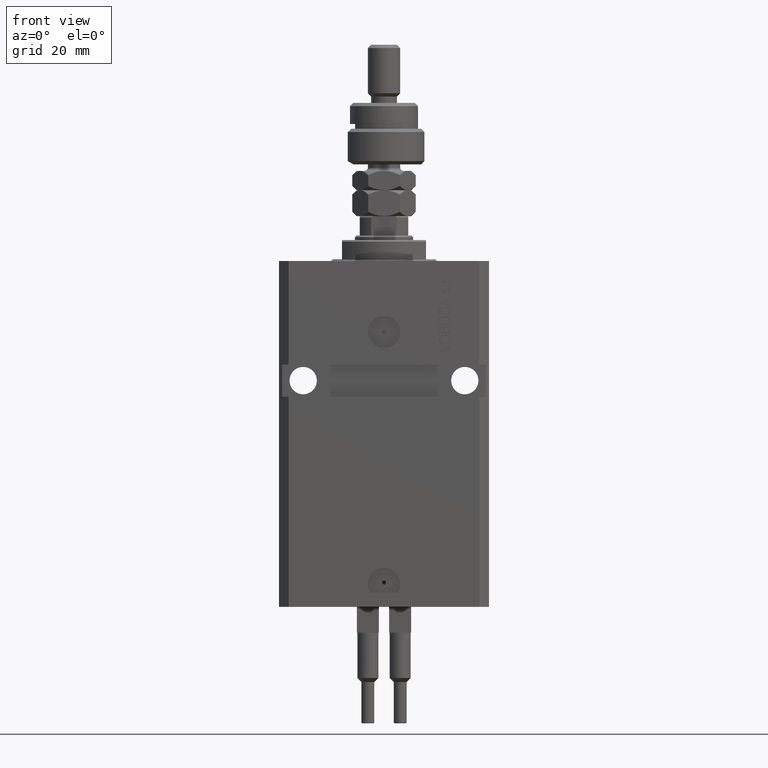
[diagram: clean part render]
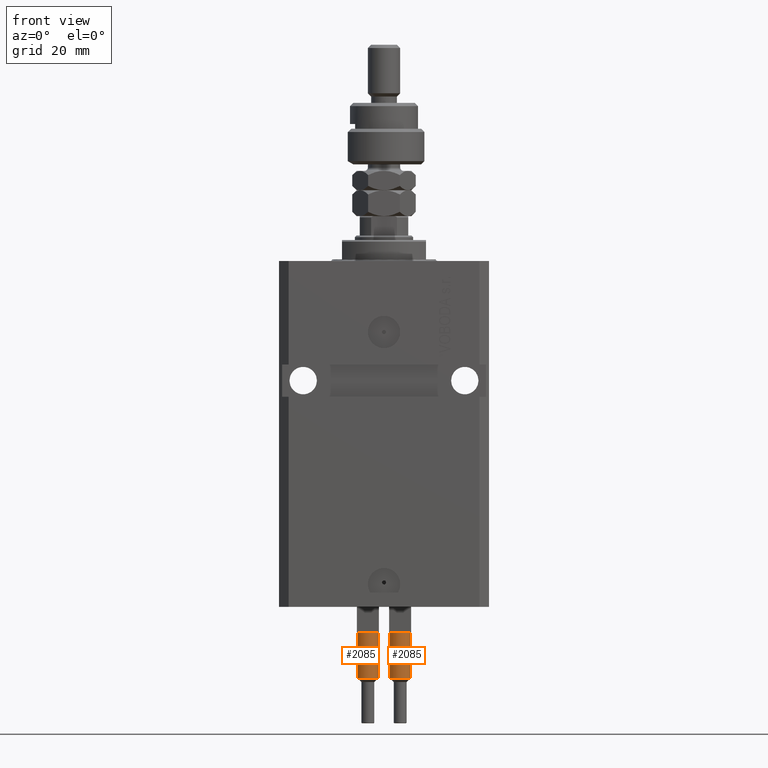
[diagram: same view with one multi-face feature highlighted, each face labeled with its STEP entity id]
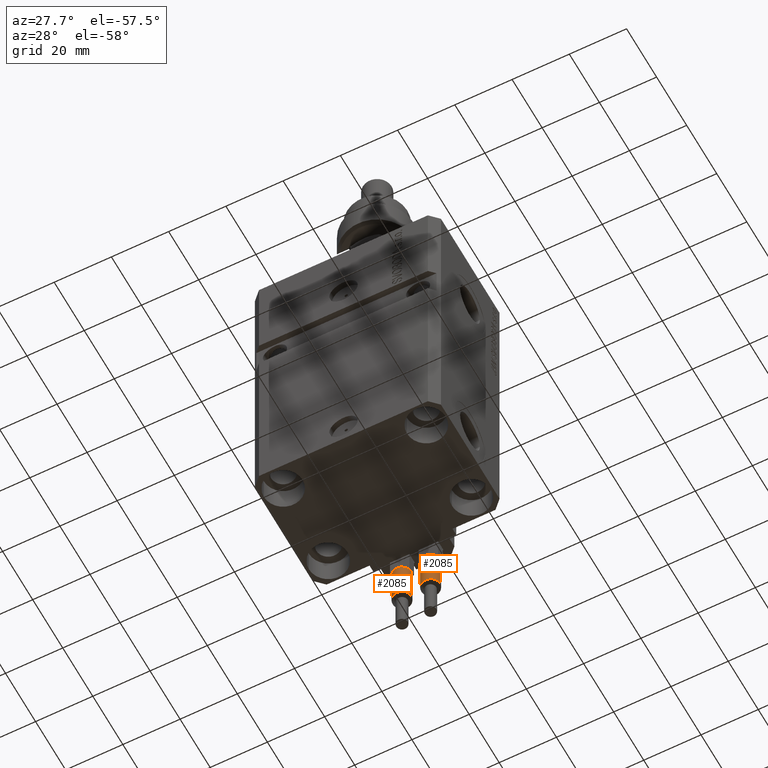
[diagram: same view with one multi-face feature highlighted, each face labeled with its STEP entity id]
A machine part, front view. The highlighted faces form ONE feature: a constant-radius fillet chain: 2 tangent blend faces with common blend radius 3.25 mm. The faces share edges in the B-rep.
A second angle (auxiliary view) of the same feature is appended — it is thin or edge-on in the first view.
Their STEP definitions:
[1] entity #2085 (Cylinder):
#932 = CIRCLE ( 'NONE', #35787, 3.250000000000000444 ) ;
#2085 = ADVANCED_FACE ( 'NONE', ( #15287 ), #31127, .T. ) ;
#3613 = DIRECTION ( 'NONE',  ( -0.000000000000000000, -0.000000000000000000, -1.000000000000000000 ) ) ;
#4104 = CARTESIAN_POINT ( 'NONE',  ( 0.000000000000000000, 0.000000000000000000, 40.00000000000000000 ) ) ;
#4173 = DIRECTION ( 'NONE',  ( -0.000000000000000000, -0.000000000000000000, -1.000000000000000000 ) ) ;
#4174 = VERTEX_POINT ( 'NONE', #9027 ) ;
#6012 = DIRECTION ( 'NONE',  ( 0.000000000000000000, 0.000000000000000000, -1.000000000000000000 ) ) ;
#6780 = EDGE_CURVE ( 'NONE', #12919, #44844, #41894, .T. ) ;
#6816 = ORIENTED_EDGE ( 'NONE', *, *, #27564, .T. ) ;
#6829 = AXIS2_PLACEMENT_3D ( 'NONE', #4104, #47705, #27991 ) ;
#9027 = CARTESIAN_POINT ( 'NONE',  ( -2.883140648667699146, -1.500000000000000000, 40.00000000000000000 ) ) ;
#10085 = LINE ( 'NONE', #18150, #25941 ) ;
#11092 = CARTESIAN_POINT ( 'NONE',  ( -3.250000000000000444, 0.000000000000000000, 53.99999999999998579 ) ) ;
#11375 = CARTESIAN_POINT ( 'NONE',  ( 0.000000000000000000, 0.000000000000000000, 56.00000000000000000 ) ) ;
#12723 = VERTEX_POINT ( 'NONE', #25381 ) ;
#12919 = VERTEX_POINT ( 'NONE', #24558 ) ;
#14056 = CARTESIAN_POINT ( 'NONE',  ( 0.000000000000000000, 0.000000000000000000, 53.99999999999998579 ) ) ;
#15282 = DIRECTION ( 'NONE',  ( 0.000000000000000000, 0.000000000000000000, 1.000000000000000000 ) ) ;
#15287 = FACE_OUTER_BOUND ( 'NONE', #44099, .T. ) ;
#15748 = CARTESIAN_POINT ( 'NONE',  ( 0.000000000000000000, 0.000000000000000000, 40.00000000000000000 ) ) ;
#15994 = CARTESIAN_POINT ( 'NONE',  ( 2.883140648667699146, -1.500000000000000000, 40.00000000000000000 ) ) ;
#16230 = AXIS2_PLACEMENT_3D ( 'NONE', #11375, #3613, #24850 ) ;
#18150 = CARTESIAN_POINT ( 'NONE',  ( -3.250000000000000444, 0.000000000000000000, 56.00000000000000000 ) ) ;
#18461 = CIRCLE ( 'NONE', #40753, 3.250000000000000444 ) ;
#24558 = CARTESIAN_POINT ( 'NONE',  ( 3.250000000000000444, 3.980102097228898231E-16, 53.99999999999998579 ) ) ;
#24850 = DIRECTION ( 'NONE',  ( -1.000000000000000000, 0.000000000000000000, 0.000000000000000000 ) ) ;
#25381 = CARTESIAN_POINT ( 'NONE',  ( -3.250000000000000444, 0.000000000000000000, 40.00000000000000000 ) ) ;
#25412 = CARTESIAN_POINT ( 'NONE',  ( 3.250000000000000444, 3.980102097228898231E-16, 40.00000000000000000 ) ) ;
#25941 = VECTOR ( 'NONE', #30353, 1000.000000000000000 ) ;
#26486 = VERTEX_POINT ( 'NONE', #25412 ) ;
#26683 = EDGE_CURVE ( 'NONE', #12723, #4174, #34191, .T. ) ;
#27416 = EDGE_CURVE ( 'NONE', #44844, #12723, #10085, .T. ) ;
#27564 = EDGE_CURVE ( 'NONE', #4174, #30895, #18461, .T. ) ;
#27954 = DIRECTION ( 'NONE',  ( 0.000000000000000000, 0.000000000000000000, 1.000000000000000000 ) ) ;
#27991 = DIRECTION ( 'NONE',  ( 1.000000000000000000, 0.000000000000000000, 0.000000000000000000 ) ) ;
#28207 = DIRECTION ( 'NONE',  ( 1.000000000000000000, 0.000000000000000000, 0.000000000000000000 ) ) ;
#30353 = DIRECTION ( 'NONE',  ( -0.000000000000000000, -0.000000000000000000, -1.000000000000000000 ) ) ;
#30496 = ORIENTED_EDGE ( 'NONE', *, *, #26683, .T. ) ;
#30895 = VERTEX_POINT ( 'NONE', #15994 ) ;
#31127 = CYLINDRICAL_SURFACE ( 'NONE', #16230, 3.250000000000000444 ) ;
#31727 = EDGE_CURVE ( 'NONE', #30895, #26486, #932, .T. ) ;
#32623 = ORIENTED_EDGE ( 'NONE', *, *, #6780, .T. ) ;
#33284 = DIRECTION ( 'NONE',  ( 1.000000000000000000, 0.000000000000000000, 0.000000000000000000 ) ) ;
#34191 = CIRCLE ( 'NONE', #6829, 3.250000000000000444 ) ;
#34834 = CARTESIAN_POINT ( 'NONE',  ( 3.250000000000000444, 3.980102097228898231E-16, 56.00000000000000000 ) ) ;
#35787 = AXIS2_PLACEMENT_3D ( 'NONE', #15748, #27954, #28207 ) ;
#36543 = ORIENTED_EDGE ( 'NONE', *, *, #27416, .T. ) ;
#37833 = EDGE_CURVE ( 'NONE', #12919, #26486, #50650, .T. ) ;
#38907 = DIRECTION ( 'NONE',  ( 1.000000000000000000, 0.000000000000000000, 0.000000000000000000 ) ) ;
#39673 = CARTESIAN_POINT ( 'NONE',  ( 0.000000000000000000, 0.000000000000000000, 40.00000000000000000 ) ) ;
#40226 = AXIS2_PLACEMENT_3D ( 'NONE', #14056, #6012, #33284 ) ;
#40616 = ORIENTED_EDGE ( 'NONE', *, *, #37833, .F. ) ;
#40753 = AXIS2_PLACEMENT_3D ( 'NONE', #39673, #15282, #38907 ) ;
#41894 = CIRCLE ( 'NONE', #40226, 3.250000000000000444 ) ;
#44091 = ORIENTED_EDGE ( 'NONE', *, *, #31727, .T. ) ;
#44099 = EDGE_LOOP ( 'NONE', ( #40616, #32623, #36543, #30496, #6816, #44091 ) ) ;
#44120 = VECTOR ( 'NONE', #4173, 1000.000000000000000 ) ;
#44844 = VERTEX_POINT ( 'NONE', #11092 ) ;
#47705 = DIRECTION ( 'NONE',  ( 0.000000000000000000, 0.000000000000000000, 1.000000000000000000 ) ) ;
#50650 = LINE ( 'NONE', #34834, #44120 ) ;
[2] entity #2085 (Cylinder):
#932 = CIRCLE ( 'NONE', #35787, 3.250000000000000444 ) ;
#2085 = ADVANCED_FACE ( 'NONE', ( #15287 ), #31127, .T. ) ;
#3613 = DIRECTION ( 'NONE',  ( -0.000000000000000000, -0.000000000000000000, -1.000000000000000000 ) ) ;
#4104 = CARTESIAN_POINT ( 'NONE',  ( 0.000000000000000000, 0.000000000000000000, 40.00000000000000000 ) ) ;
#4173 = DIRECTION ( 'NONE',  ( -0.000000000000000000, -0.000000000000000000, -1.000000000000000000 ) ) ;
#4174 = VERTEX_POINT ( 'NONE', #9027 ) ;
#6012 = DIRECTION ( 'NONE',  ( 0.000000000000000000, 0.000000000000000000, -1.000000000000000000 ) ) ;
#6780 = EDGE_CURVE ( 'NONE', #12919, #44844, #41894, .T. ) ;
#6816 = ORIENTED_EDGE ( 'NONE', *, *, #27564, .T. ) ;
#6829 = AXIS2_PLACEMENT_3D ( 'NONE', #4104, #47705, #27991 ) ;
#9027 = CARTESIAN_POINT ( 'NONE',  ( -2.883140648667699146, -1.500000000000000000, 40.00000000000000000 ) ) ;
#10085 = LINE ( 'NONE', #18150, #25941 ) ;
#11092 = CARTESIAN_POINT ( 'NONE',  ( -3.250000000000000444, 0.000000000000000000, 53.99999999999998579 ) ) ;
#11375 = CARTESIAN_POINT ( 'NONE',  ( 0.000000000000000000, 0.000000000000000000, 56.00000000000000000 ) ) ;
#12723 = VERTEX_POINT ( 'NONE', #25381 ) ;
#12919 = VERTEX_POINT ( 'NONE', #24558 ) ;
#14056 = CARTESIAN_POINT ( 'NONE',  ( 0.000000000000000000, 0.000000000000000000, 53.99999999999998579 ) ) ;
#15282 = DIRECTION ( 'NONE',  ( 0.000000000000000000, 0.000000000000000000, 1.000000000000000000 ) ) ;
#15287 = FACE_OUTER_BOUND ( 'NONE', #44099, .T. ) ;
#15748 = CARTESIAN_POINT ( 'NONE',  ( 0.000000000000000000, 0.000000000000000000, 40.00000000000000000 ) ) ;
#15994 = CARTESIAN_POINT ( 'NONE',  ( 2.883140648667699146, -1.500000000000000000, 40.00000000000000000 ) ) ;
#16230 = AXIS2_PLACEMENT_3D ( 'NONE', #11375, #3613, #24850 ) ;
#18150 = CARTESIAN_POINT ( 'NONE',  ( -3.250000000000000444, 0.000000000000000000, 56.00000000000000000 ) ) ;
#18461 = CIRCLE ( 'NONE', #40753, 3.250000000000000444 ) ;
#24558 = CARTESIAN_POINT ( 'NONE',  ( 3.250000000000000444, 3.980102097228898231E-16, 53.99999999999998579 ) ) ;
#24850 = DIRECTION ( 'NONE',  ( -1.000000000000000000, 0.000000000000000000, 0.000000000000000000 ) ) ;
#25381 = CARTESIAN_POINT ( 'NONE',  ( -3.250000000000000444, 0.000000000000000000, 40.00000000000000000 ) ) ;
#25412 = CARTESIAN_POINT ( 'NONE',  ( 3.250000000000000444, 3.980102097228898231E-16, 40.00000000000000000 ) ) ;
#25941 = VECTOR ( 'NONE', #30353, 1000.000000000000000 ) ;
#26486 = VERTEX_POINT ( 'NONE', #25412 ) ;
#26683 = EDGE_CURVE ( 'NONE', #12723, #4174, #34191, .T. ) ;
#27416 = EDGE_CURVE ( 'NONE', #44844, #12723, #10085, .T. ) ;
#27564 = EDGE_CURVE ( 'NONE', #4174, #30895, #18461, .T. ) ;
#27954 = DIRECTION ( 'NONE',  ( 0.000000000000000000, 0.000000000000000000, 1.000000000000000000 ) ) ;
#27991 = DIRECTION ( 'NONE',  ( 1.000000000000000000, 0.000000000000000000, 0.000000000000000000 ) ) ;
#28207 = DIRECTION ( 'NONE',  ( 1.000000000000000000, 0.000000000000000000, 0.000000000000000000 ) ) ;
#30353 = DIRECTION ( 'NONE',  ( -0.000000000000000000, -0.000000000000000000, -1.000000000000000000 ) ) ;
#30496 = ORIENTED_EDGE ( 'NONE', *, *, #26683, .T. ) ;
#30895 = VERTEX_POINT ( 'NONE', #15994 ) ;
#31127 = CYLINDRICAL_SURFACE ( 'NONE', #16230, 3.250000000000000444 ) ;
#31727 = EDGE_CURVE ( 'NONE', #30895, #26486, #932, .T. ) ;
#32623 = ORIENTED_EDGE ( 'NONE', *, *, #6780, .T. ) ;
#33284 = DIRECTION ( 'NONE',  ( 1.000000000000000000, 0.000000000000000000, 0.000000000000000000 ) ) ;
#34191 = CIRCLE ( 'NONE', #6829, 3.250000000000000444 ) ;
#34834 = CARTESIAN_POINT ( 'NONE',  ( 3.250000000000000444, 3.980102097228898231E-16, 56.00000000000000000 ) ) ;
#35787 = AXIS2_PLACEMENT_3D ( 'NONE', #15748, #27954, #28207 ) ;
#36543 = ORIENTED_EDGE ( 'NONE', *, *, #27416, .T. ) ;
#37833 = EDGE_CURVE ( 'NONE', #12919, #26486, #50650, .T. ) ;
#38907 = DIRECTION ( 'NONE',  ( 1.000000000000000000, 0.000000000000000000, 0.000000000000000000 ) ) ;
#39673 = CARTESIAN_POINT ( 'NONE',  ( 0.000000000000000000, 0.000000000000000000, 40.00000000000000000 ) ) ;
#40226 = AXIS2_PLACEMENT_3D ( 'NONE', #14056, #6012, #33284 ) ;
#40616 = ORIENTED_EDGE ( 'NONE', *, *, #37833, .F. ) ;
#40753 = AXIS2_PLACEMENT_3D ( 'NONE', #39673, #15282, #38907 ) ;
#41894 = CIRCLE ( 'NONE', #40226, 3.250000000000000444 ) ;
#44091 = ORIENTED_EDGE ( 'NONE', *, *, #31727, .T. ) ;
#44099 = EDGE_LOOP ( 'NONE', ( #40616, #32623, #36543, #30496, #6816, #44091 ) ) ;
#44120 = VECTOR ( 'NONE', #4173, 1000.000000000000000 ) ;
#44844 = VERTEX_POINT ( 'NONE', #11092 ) ;
#47705 = DIRECTION ( 'NONE',  ( 0.000000000000000000, 0.000000000000000000, 1.000000000000000000 ) ) ;
#50650 = LINE ( 'NONE', #34834, #44120 ) ;